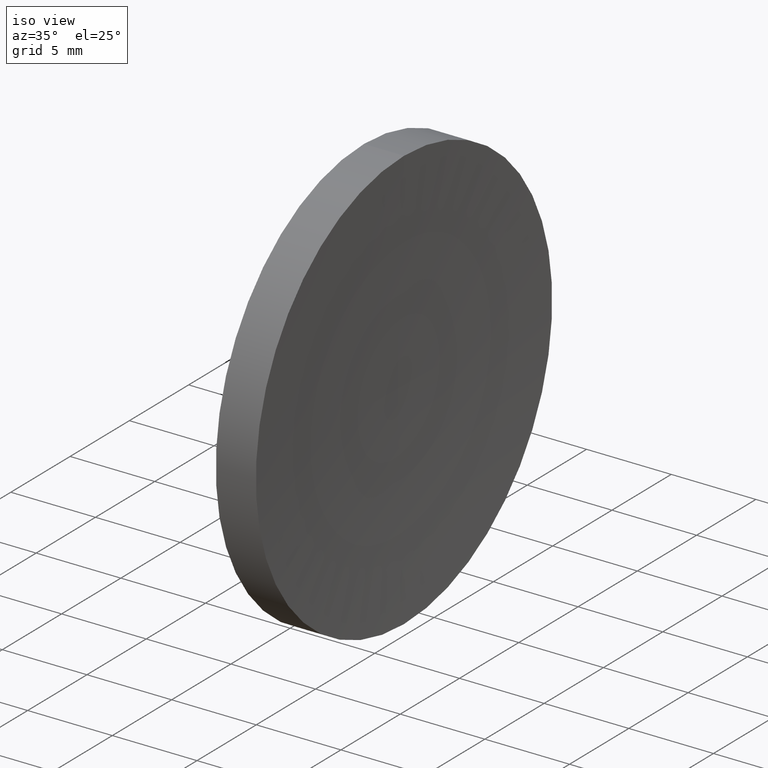
[diagram: clean part render]
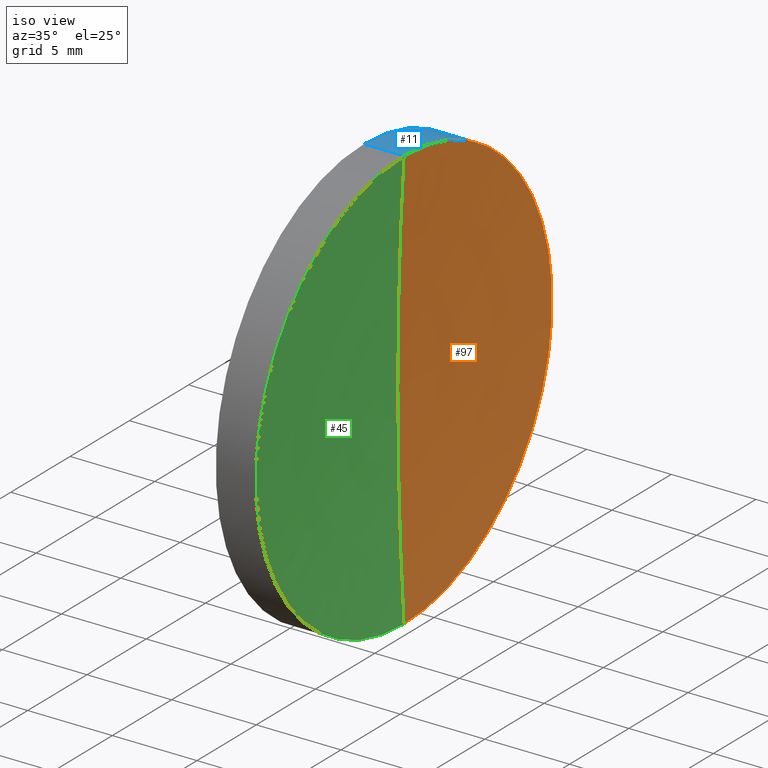
[diagram: same view with three faces highlighted in distinct colors, each labeled with its STEP entity id]
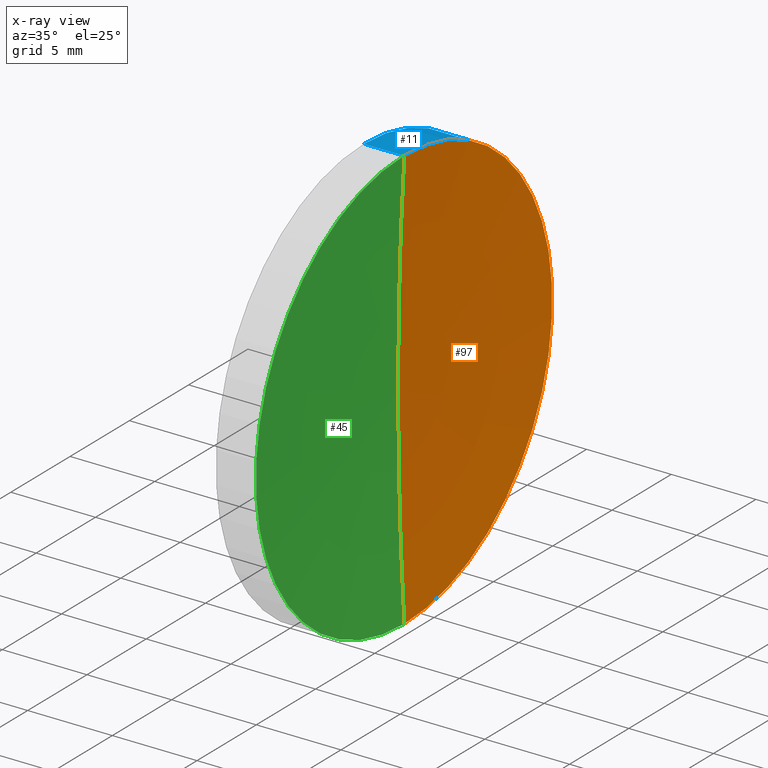
[diagram: x-ray of the same camera — body ghosted, the three highlighted faces saturated]
A machine part, iso view with three faces highlighted in distinct colors.
The next image is the same camera in x-ray (body ghosted, the three faces saturated) — at least one of them is partly hidden behind the body in this view.
Their STEP definitions:

[orange] entity #97 — the highlighted toroidal blend (fillet) surface has major radius 0.234 mm and minor (blend) radius 206.1 mm.
#10 = AXIS2_PLACEMENT_3D ( 'NONE', #112, #51, #19 ) ;
#17 = EDGE_LOOP ( 'NONE', ( #131, #42, #81 ) ) ;
#19 = DIRECTION ( 'NONE',  ( 0.0000000000000000000, -1.346704299642353900E-016, 1.000000000000000000 ) ) ;
#21 = DIRECTION ( 'NONE',  ( 0.0000000000000000000, 0.0000000000000000000, 1.000000000000000000 ) ) ;
#26 = VERTEX_POINT ( 'NONE', #126 ) ;
#30 = CIRCLE ( 'NONE', #77, 206.0999999999999900 ) ;
#32 = FACE_OUTER_BOUND ( 'NONE', #17, .T. ) ;
#40 = VERTEX_POINT ( 'NONE', #143 ) ;
#42 = ORIENTED_EDGE ( 'NONE', *, *, #147, .F. ) ;
#48 = CIRCLE ( 'NONE', #10, 206.0999999999999900 ) ;
#51 = DIRECTION ( 'NONE',  ( -0.0000000000000000000, 1.000000000000000000, 1.224646799147353200E-016 ) ) ;
#54 = TOROIDAL_SURFACE ( 'NONE', #166, 0.2339697193769613200, 206.0999999999999900 ) ;
#65 = DIRECTION ( 'NONE',  ( 0.0000000000000000000, 0.0000000000000000000, -1.000000000000000000 ) ) ;
#67 = DIRECTION ( 'NONE',  ( 0.0000000000000000000, 0.0000000000000000000, 1.000000000000000000 ) ) ;
#68 = CARTESIAN_POINT ( 'NONE',  ( 265.6322042484329100, 32.61076812922678400, 0.2339697193769613200 ) ) ;
#77 = AXIS2_PLACEMENT_3D ( 'NONE', #68, #80, #65 ) ;
#80 = DIRECTION ( 'NONE',  ( 0.0000000000000000000, -1.000000000000000000, 0.0000000000000000000 ) ) ;
#81 = ORIENTED_EDGE ( 'NONE', *, *, #98, .T. ) ;
#87 = AXIS2_PLACEMENT_3D ( 'NONE', #123, #137, #67 ) ;
#97 = ADVANCED_FACE ( 'NONE', ( #32 ), #54, .F. ) ;
#98 = EDGE_CURVE ( 'NONE', #118, #40, #30, .T. ) ;
#101 = EDGE_CURVE ( 'NONE', #26, #40, #48, .T. ) ;
#104 = CIRCLE ( 'NONE', #87, 12.49999999999999600 ) ;
#112 = CARTESIAN_POINT ( 'NONE',  ( 265.6322042484329100, 32.61076812922678400, -0.2339697193769613200 ) ) ;
#118 = VERTEX_POINT ( 'NONE', #136 ) ;
#123 = CARTESIAN_POINT ( 'NONE',  ( 59.89753409982904500, 32.61076812922678400, 0.0000000000000000000 ) ) ;
#126 = CARTESIAN_POINT ( 'NONE',  ( 59.89753409982903800, 32.61076812922678400, -12.49999999999998000 ) ) ;
#131 = ORIENTED_EDGE ( 'NONE', *, *, #101, .F. ) ;
#136 = CARTESIAN_POINT ( 'NONE',  ( 59.89753409982903800, 32.61076812922678400, 12.49999999999998000 ) ) ;
#137 = DIRECTION ( 'NONE',  ( -1.000000000000000000, -0.0000000000000000000, -0.0000000000000000000 ) ) ;
#138 = DIRECTION ( 'NONE',  ( -1.000000000000000000, -0.0000000000000000000, -0.0000000000000000000 ) ) ;
#143 = CARTESIAN_POINT ( 'NONE',  ( 59.53233705252613800, 32.61076812922678400, 0.0000000000000000000 ) ) ;
#147 = EDGE_CURVE ( 'NONE', #118, #26, #104, .T. ) ;
#155 = CARTESIAN_POINT ( 'NONE',  ( 265.6322042484329100, 32.61076812922678400, 0.0000000000000000000 ) ) ;
#166 = AXIS2_PLACEMENT_3D ( 'NONE', #155, #138, #21 ) ;

[blue] entity #11 — the highlighted cylindrical surface (partial cylindrical patch) has radius 12.5 mm, axis along (-1, -0, -0).
#7 = CARTESIAN_POINT ( 'NONE',  ( 57.53233705252611700, 32.61076812922678400, 12.49999999999999600 ) ) ;
#9 = DIRECTION ( 'NONE',  ( -1.000000000000000000, -0.0000000000000000000, -0.0000000000000000000 ) ) ;
#11 = ADVANCED_FACE ( 'NONE', ( #140 ), #106, .T. ) ;
#12 = VERTEX_POINT ( 'NONE', #57 ) ;
#13 = CIRCLE ( 'NONE', #162, 12.49999999999999600 ) ;
#25 = CARTESIAN_POINT ( 'NONE',  ( 56.10091507999716500, 32.61076812922678400, 0.0000000000000000000 ) ) ;
#26 = VERTEX_POINT ( 'NONE', #126 ) ;
#35 = VECTOR ( 'NONE', #9, 1000.000000000000000 ) ;
#37 = DIRECTION ( 'NONE',  ( 0.0000000000000000000, 0.0000000000000000000, 1.000000000000000000 ) ) ;
#44 = VERTEX_POINT ( 'NONE', #7 ) ;
#47 = EDGE_CURVE ( 'NONE', #26, #12, #59, .T. ) ;
#50 = DIRECTION ( 'NONE',  ( -1.000000000000000000, -0.0000000000000000000, -0.0000000000000000000 ) ) ;
#56 = DIRECTION ( 'NONE',  ( -1.000000000000000000, -0.0000000000000000000, -0.0000000000000000000 ) ) ;
#57 = CARTESIAN_POINT ( 'NONE',  ( 57.53233705252611700, 32.61076812922678400, -12.49999999999999600 ) ) ;
#59 = LINE ( 'NONE', #78, #35 ) ;
#64 = DIRECTION ( 'NONE',  ( 0.0000000000000000000, 0.0000000000000000000, 1.000000000000000000 ) ) ;
#67 = DIRECTION ( 'NONE',  ( 0.0000000000000000000, 0.0000000000000000000, 1.000000000000000000 ) ) ;
#71 = ORIENTED_EDGE ( 'NONE', *, *, #47, .T. ) ;
#78 = CARTESIAN_POINT ( 'NONE',  ( 56.10091507999716500, 32.61076812922678400, -12.49999999999999600 ) ) ;
#79 = AXIS2_PLACEMENT_3D ( 'NONE', #25, #56, #37 ) ;
#82 = VECTOR ( 'NONE', #50, 1000.000000000000000 ) ;
#87 = AXIS2_PLACEMENT_3D ( 'NONE', #123, #137, #67 ) ;
#96 = ORIENTED_EDGE ( 'NONE', *, *, #145, .F. ) ;
#104 = CIRCLE ( 'NONE', #87, 12.49999999999999600 ) ;
#106 = CYLINDRICAL_SURFACE ( 'NONE', #79, 12.49999999999999600 ) ;
#109 = LINE ( 'NONE', #152, #82 ) ;
#116 = ORIENTED_EDGE ( 'NONE', *, *, #134, .F. ) ;
#118 = VERTEX_POINT ( 'NONE', #136 ) ;
#121 = CARTESIAN_POINT ( 'NONE',  ( 57.53233705252611700, 32.61076812922678400, 0.0000000000000000000 ) ) ;
#122 = ORIENTED_EDGE ( 'NONE', *, *, #147, .T. ) ;
#123 = CARTESIAN_POINT ( 'NONE',  ( 59.89753409982904500, 32.61076812922678400, 0.0000000000000000000 ) ) ;
#126 = CARTESIAN_POINT ( 'NONE',  ( 59.89753409982903800, 32.61076812922678400, -12.49999999999998000 ) ) ;
#129 = EDGE_LOOP ( 'NONE', ( #122, #71, #116, #96 ) ) ;
#134 = EDGE_CURVE ( 'NONE', #44, #12, #13, .T. ) ;
#135 = DIRECTION ( 'NONE',  ( -1.000000000000000000, -0.0000000000000000000, -0.0000000000000000000 ) ) ;
#136 = CARTESIAN_POINT ( 'NONE',  ( 59.89753409982903800, 32.61076812922678400, 12.49999999999998000 ) ) ;
#137 = DIRECTION ( 'NONE',  ( -1.000000000000000000, -0.0000000000000000000, -0.0000000000000000000 ) ) ;
#140 = FACE_OUTER_BOUND ( 'NONE', #129, .T. ) ;
#145 = EDGE_CURVE ( 'NONE', #118, #44, #109, .T. ) ;
#147 = EDGE_CURVE ( 'NONE', #118, #26, #104, .T. ) ;
#152 = CARTESIAN_POINT ( 'NONE',  ( 56.10091507999716500, 32.61076812922678400, 12.49999999999999600 ) ) ;
#162 = AXIS2_PLACEMENT_3D ( 'NONE', #121, #135, #64 ) ;

[green] entity #45 — the highlighted toroidal blend (fillet) surface has major radius 0.234 mm and minor (blend) radius 206.1 mm.
#2 = DIRECTION ( 'NONE',  ( -1.000000000000000000, -0.0000000000000000000, -0.0000000000000000000 ) ) ;
#10 = AXIS2_PLACEMENT_3D ( 'NONE', #112, #51, #19 ) ;
#15 = ORIENTED_EDGE ( 'NONE', *, *, #98, .F. ) ;
#19 = DIRECTION ( 'NONE',  ( 0.0000000000000000000, -1.346704299642353900E-016, 1.000000000000000000 ) ) ;
#24 = TOROIDAL_SURFACE ( 'NONE', #38, 0.2339697193769613200, 206.0999999999999900 ) ;
#26 = VERTEX_POINT ( 'NONE', #126 ) ;
#30 = CIRCLE ( 'NONE', #77, 206.0999999999999900 ) ;
#38 = AXIS2_PLACEMENT_3D ( 'NONE', #43, #161, #159 ) ;
#40 = VERTEX_POINT ( 'NONE', #143 ) ;
#43 = CARTESIAN_POINT ( 'NONE',  ( 265.6322042484329100, 32.61076812922678400, 0.0000000000000000000 ) ) ;
#45 = ADVANCED_FACE ( 'NONE', ( #61 ), #24, .F. ) ;
#48 = CIRCLE ( 'NONE', #10, 206.0999999999999900 ) ;
#51 = DIRECTION ( 'NONE',  ( -0.0000000000000000000, 1.000000000000000000, 1.224646799147353200E-016 ) ) ;
#61 = FACE_OUTER_BOUND ( 'NONE', #103, .T. ) ;
#65 = DIRECTION ( 'NONE',  ( 0.0000000000000000000, 0.0000000000000000000, -1.000000000000000000 ) ) ;
#68 = CARTESIAN_POINT ( 'NONE',  ( 265.6322042484329100, 32.61076812922678400, 0.2339697193769613200 ) ) ;
#77 = AXIS2_PLACEMENT_3D ( 'NONE', #68, #80, #65 ) ;
#80 = DIRECTION ( 'NONE',  ( 0.0000000000000000000, -1.000000000000000000, 0.0000000000000000000 ) ) ;
#98 = EDGE_CURVE ( 'NONE', #118, #40, #30, .T. ) ;
#101 = EDGE_CURVE ( 'NONE', #26, #40, #48, .T. ) ;
#102 = DIRECTION ( 'NONE',  ( 0.0000000000000000000, 0.0000000000000000000, 1.000000000000000000 ) ) ;
#103 = EDGE_LOOP ( 'NONE', ( #160, #164, #15 ) ) ;
#111 = CARTESIAN_POINT ( 'NONE',  ( 59.89753409982904500, 32.61076812922678400, 0.0000000000000000000 ) ) ;
#112 = CARTESIAN_POINT ( 'NONE',  ( 265.6322042484329100, 32.61076812922678400, -0.2339697193769613200 ) ) ;
#118 = VERTEX_POINT ( 'NONE', #136 ) ;
#126 = CARTESIAN_POINT ( 'NONE',  ( 59.89753409982903800, 32.61076812922678400, -12.49999999999998000 ) ) ;
#128 = AXIS2_PLACEMENT_3D ( 'NONE', #111, #2, #102 ) ;
#136 = CARTESIAN_POINT ( 'NONE',  ( 59.89753409982903800, 32.61076812922678400, 12.49999999999998000 ) ) ;
#141 = CIRCLE ( 'NONE', #128, 12.49999999999999600 ) ;
#143 = CARTESIAN_POINT ( 'NONE',  ( 59.53233705252613800, 32.61076812922678400, 0.0000000000000000000 ) ) ;
#159 = DIRECTION ( 'NONE',  ( 0.0000000000000000000, 0.0000000000000000000, 1.000000000000000000 ) ) ;
#160 = ORIENTED_EDGE ( 'NONE', *, *, #165, .F. ) ;
#161 = DIRECTION ( 'NONE',  ( -1.000000000000000000, -0.0000000000000000000, -0.0000000000000000000 ) ) ;
#164 = ORIENTED_EDGE ( 'NONE', *, *, #101, .T. ) ;
#165 = EDGE_CURVE ( 'NONE', #26, #118, #141, .T. ) ;